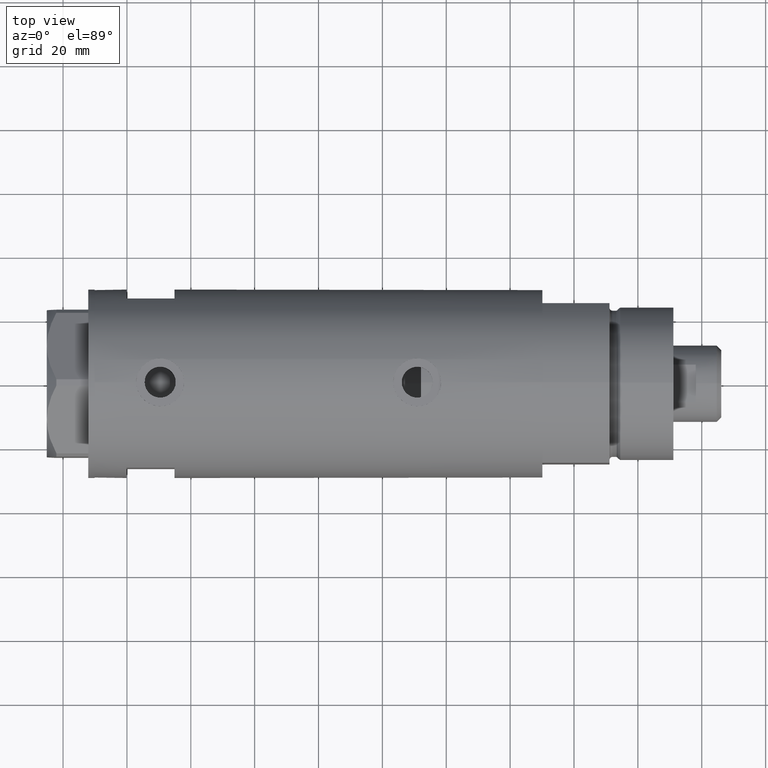
[diagram: clean part render]
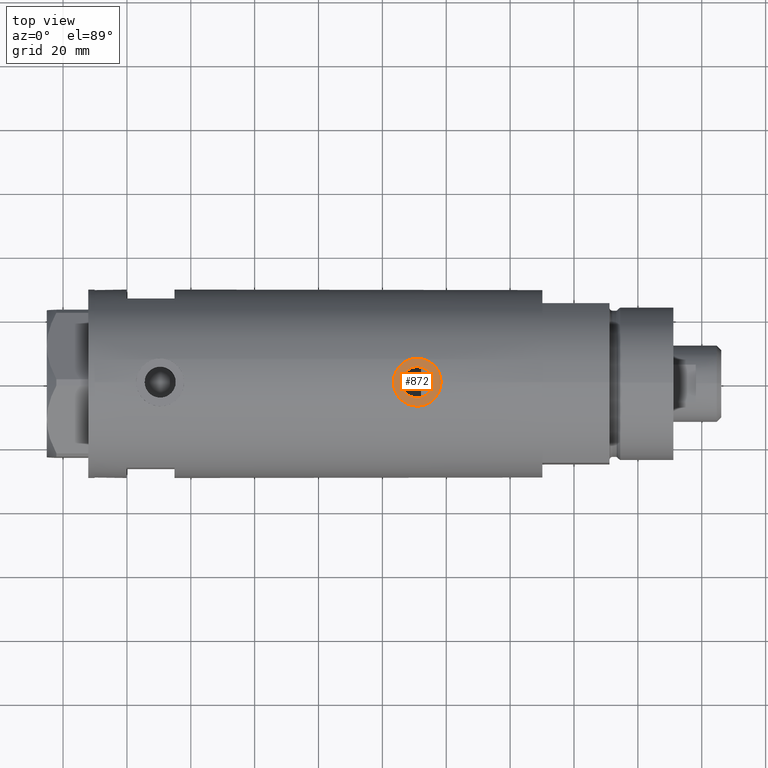
[diagram: same view with one face highlighted and labeled with its STEP entity id]
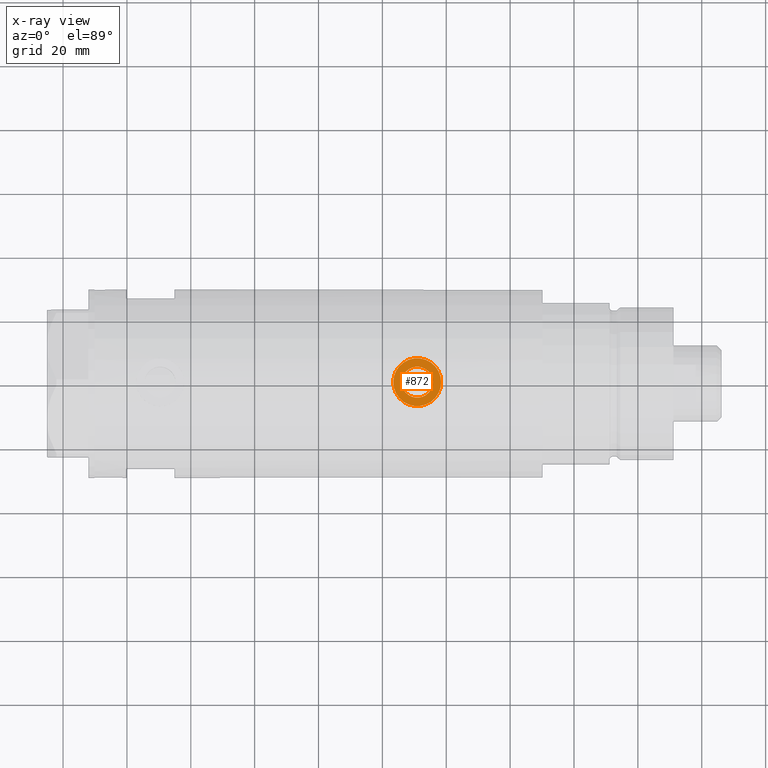
[diagram: x-ray of the same camera — body ghosted, the highlighted face saturated]
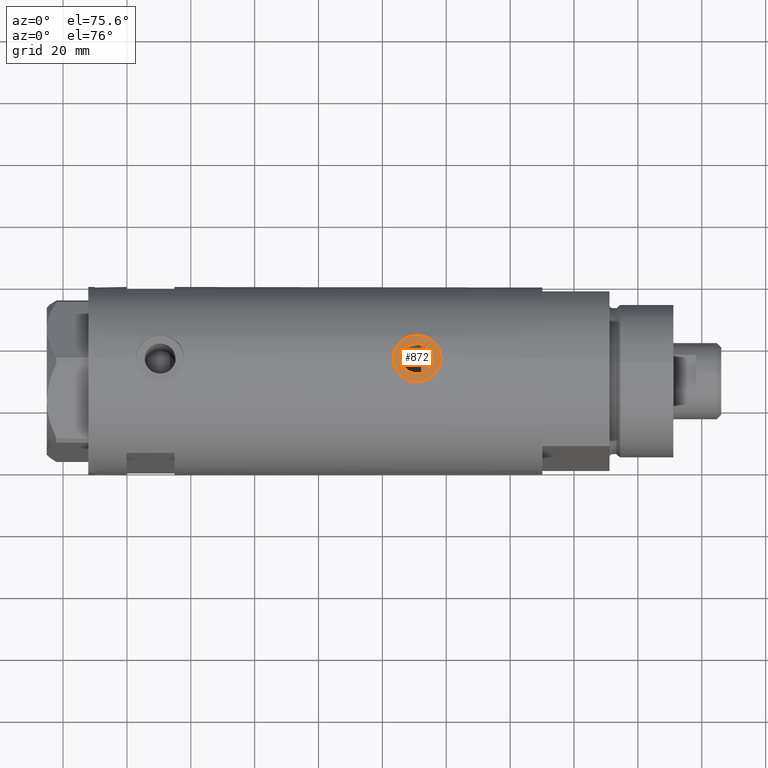
[diagram: same view with one face highlighted and labeled with its STEP entity id]
A machine part, top view. The second image highlights one B-rep face of the part: STEP entity #872.
The next image is the same camera in x-ray: the body ghosted, the highlighted face saturated — about 0% of this face is hidden behind the body in this view.
A second angle (auxiliary view) of the same face is appended — the face is thin or edge-on in the first view.
In plain terms, the highlighted planar face has unit normal (0, 0, 1).
Its self-contained STEP definition (entity closure, byte-faithful):
#72 = DIRECTION ( 'NONE',  ( 1.000000000000000000, 0.000000000000000000, 0.000000000000000000 ) ) ;
#81 = VERTEX_POINT ( 'NONE', #3291 ) ;
#117 = CIRCLE ( 'NONE', #3494, 7.500000000000000000 ) ;
#224 = ORIENTED_EDGE ( 'NONE', *, *, #377, .T. ) ;
#377 = EDGE_CURVE ( 'NONE', #3069, #1963, #4148, .T. ) ;
#400 = AXIS2_PLACEMENT_3D ( 'NONE', #1194, #2234, #520 ) ;
#473 = AXIS2_PLACEMENT_3D ( 'NONE', #3585, #496, #2231 ) ;
#496 = DIRECTION ( 'NONE',  ( 1.000000000000000000, 0.000000000000000000, 0.000000000000000000 ) ) ;
#520 = DIRECTION ( 'NONE',  ( 0.000000000000000000, 0.000000000000000000, -1.000000000000000000 ) ) ;
#657 = EDGE_CURVE ( 'NONE', #1963, #3069, #117, .T. ) ;
#768 = DIRECTION ( 'NONE',  ( 0.000000000000000000, 0.000000000000000000, -1.000000000000000000 ) ) ;
#832 = PLANE ( 'NONE',  #473 ) ;
#841 = ORIENTED_EDGE ( 'NONE', *, *, #657, .T. ) ;
#872 = ADVANCED_FACE ( 'NONE', ( #1889, #3919 ), #832, .T. ) ;
#995 = CARTESIAN_POINT ( 'NONE',  ( 28.30000000000000071, 0.000000000000000000, -30.89999999999999147 ) ) ;
#1041 = EDGE_CURVE ( 'NONE', #4275, #81, #3062, .T. ) ;
#1050 = CARTESIAN_POINT ( 'NONE',  ( 28.30000000000000071, 0.000000000000000000, -35.76499999999999346 ) ) ;
#1078 = CARTESIAN_POINT ( 'NONE',  ( 28.30000000000000071, 0.000000000000000000, -38.39999999999999147 ) ) ;
#1113 = CARTESIAN_POINT ( 'NONE',  ( 28.30000000000000071, 0.000000000000000000, -30.89999999999999147 ) ) ;
#1194 = CARTESIAN_POINT ( 'NONE',  ( 28.30000000000000071, 0.000000000000000000, -30.89999999999999147 ) ) ;
#1283 = DIRECTION ( 'NONE',  ( 0.000000000000000000, 0.000000000000000000, -1.000000000000000000 ) ) ;
#1621 = DIRECTION ( 'NONE',  ( 1.000000000000000000, 0.000000000000000000, 0.000000000000000000 ) ) ;
#1863 = DIRECTION ( 'NONE',  ( 0.000000000000000000, 0.000000000000000000, -1.000000000000000000 ) ) ;
#1889 = FACE_BOUND ( 'NONE', #4224, .T. ) ;
#1914 = CARTESIAN_POINT ( 'NONE',  ( 28.30000000000000071, 9.184850993605147944E-16, -23.39999999999999147 ) ) ;
#1963 = VERTEX_POINT ( 'NONE', #1914 ) ;
#2068 = CARTESIAN_POINT ( 'NONE',  ( 28.30000000000000071, 0.000000000000000000, -30.89999999999999147 ) ) ;
#2231 = DIRECTION ( 'NONE',  ( 0.000000000000000000, 0.000000000000000000, -1.000000000000000000 ) ) ;
#2234 = DIRECTION ( 'NONE',  ( 1.000000000000000000, 0.000000000000000000, 0.000000000000000000 ) ) ;
#2679 = ORIENTED_EDGE ( 'NONE', *, *, #1041, .F. ) ;
#3062 = CIRCLE ( 'NONE', #3263, 4.865000000000001101 ) ;
#3069 = VERTEX_POINT ( 'NONE', #1078 ) ;
#3263 = AXIS2_PLACEMENT_3D ( 'NONE', #995, #1621, #1283 ) ;
#3291 = CARTESIAN_POINT ( 'NONE',  ( 28.30000000000000071, 5.957906677851872610E-16, -26.03499999999998948 ) ) ;
#3433 = AXIS2_PLACEMENT_3D ( 'NONE', #2068, #3439, #1863 ) ;
#3439 = DIRECTION ( 'NONE',  ( 1.000000000000000000, 0.000000000000000000, 0.000000000000000000 ) ) ;
#3494 = AXIS2_PLACEMENT_3D ( 'NONE', #1113, #72, #768 ) ;
#3574 = EDGE_LOOP ( 'NONE', ( #224, #841 ) ) ;
#3585 = CARTESIAN_POINT ( 'NONE',  ( 28.30000000000000071, 0.000000000000000000, -30.89999999999999147 ) ) ;
#3615 = ORIENTED_EDGE ( 'NONE', *, *, #3836, .F. ) ;
#3724 = CIRCLE ( 'NONE', #3433, 4.865000000000001101 ) ;
#3836 = EDGE_CURVE ( 'NONE', #81, #4275, #3724, .T. ) ;
#3919 = FACE_OUTER_BOUND ( 'NONE', #3574, .T. ) ;
#4148 = CIRCLE ( 'NONE', #400, 7.500000000000000000 ) ;
#4224 = EDGE_LOOP ( 'NONE', ( #2679, #3615 ) ) ;
#4275 = VERTEX_POINT ( 'NONE', #1050 ) ;